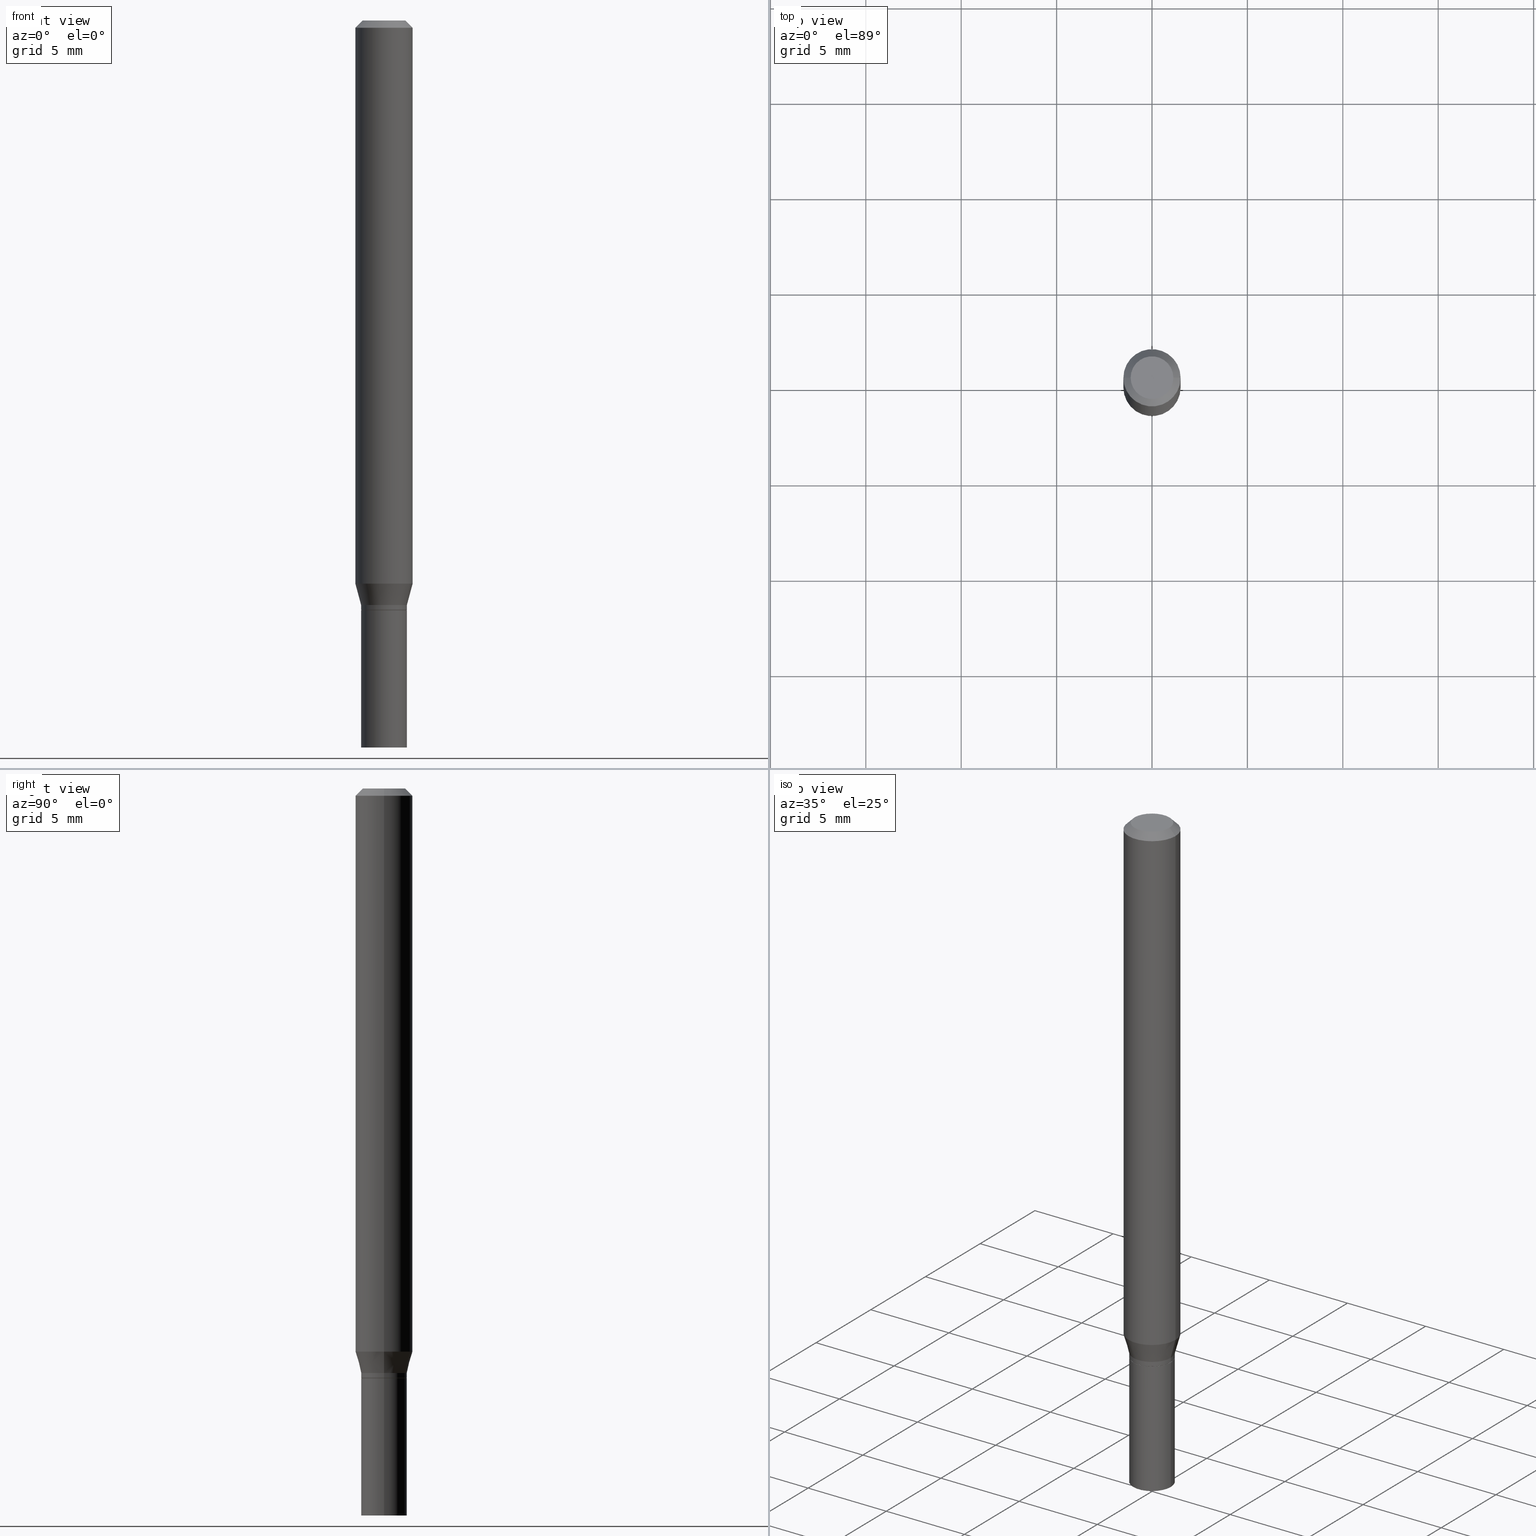
[diagram: canonical four-view strip — front | top / right | iso, engineering-drawing reading convention]
A machine part, canonical four-view strip (front | top / right | iso — engineering-drawing reading convention). The complete STEP part file that produces these views, byte-faithful:
ISO-10303-21;
HEADER;
FILE_DESCRIPTION (( 'STEP AP203' ),
    '1' );
FILE_NAME ('02885.STEP',
    '2024-03-18T21:58:49',
    ( '' ),
    ( '' ),
    'SwSTEP 2.0',
    'SolidWorks 2023',
    '' );
FILE_SCHEMA (( 'CONFIG_CONTROL_DESIGN' ));
ENDSEC;

DATA;
#1 = DIRECTION ( 'NONE',  ( -2.445468806185136597E-29, 3.491481338843145583E-15, 1.000000000000000000 ) ) ;
#2 = PERSON_AND_ORGANIZATION ( #64, #134 ) ;
#3 = PRODUCT_DEFINITION ( 'UNKNOWN', '', #232, #330 ) ;
#4 = ORIENTED_EDGE ( 'NONE', *, *, #308, .F. ) ;
#5 = AXIS2_PLACEMENT_3D ( 'NONE', #349, #131, #421 ) ;
#6 = VECTOR ( 'NONE', #400, 39.37007874015748854 ) ;
#7 = PERSON_AND_ORGANIZATION ( #64, #134 ) ;
#8 = CARTESIAN_POINT ( 'NONE',  ( 2.949235380259274955E-29, -4.210726494644834635E-15, -1.206000000000000183 ) ) ;
#9 = EDGE_LOOP ( 'NONE', ( #409, #422, #267, #25 ) ) ;
#10 = COORDINATED_UNIVERSAL_TIME_OFFSET ( 5, 0, .BEHIND. ) ;
#11 = LINE ( 'NONE', #83, #407 ) ;
#12 = DIRECTION ( 'NONE',  ( -2.445468806185136597E-29, 3.491481338843145583E-15, 1.000000000000000000 ) ) ;
#13 = PERSON_AND_ORGANIZATION ( #64, #134 ) ;
#14 = AXIS2_PLACEMENT_3D ( 'NONE', #208, #429, #100 ) ;
#15 = CARTESIAN_POINT ( 'NONE',  ( -0.04725000000000005584, -3.874995051998187196E-15, -1.206000000000000183 ) ) ;
#16 = APPLICATION_PROTOCOL_DEFINITION ( 'international standard', 'config_control_design', 1994, #209 ) ;
#17 = EDGE_CURVE ( 'NONE', #245, #123, #254, .T. ) ;
#18 = ORIENTED_EDGE ( 'NONE', *, *, #363, .T. ) ;
#19 = ORIENTED_EDGE ( 'NONE', *, *, #17, .T. ) ;
#20 = VECTOR ( 'NONE', #402, 39.37007874015748143 ) ;
#21 = VERTEX_POINT ( 'NONE', #283 ) ;
#22 = CC_DESIGN_PERSON_AND_ORGANIZATION_ASSIGNMENT ( #7, #184, ( #3 ) ) ;
#23 = ORIENTED_EDGE ( 'NONE', *, *, #17, .F. ) ;
#24 = DIRECTION ( 'NONE',  ( -2.445468806185136597E-29, 3.491481338843145583E-15, 1.000000000000000000 ) ) ;
#25 = ORIENTED_EDGE ( 'NONE', *, *, #77, .F. ) ;
#26 = CIRCLE ( 'NONE', #367, 0.04404999999999999888 ) ;
#27 = APPROVAL_PERSON_ORGANIZATION ( #43, #313, #69 ) ;
#28 = ADVANCED_FACE ( 'NONE', ( #249 ), #341, .F. ) ;
#29 = DIRECTION ( 'NONE',  ( 2.445468806185136597E-29, -3.491481338843145583E-15, -1.000000000000000000 ) ) ;
#30 = FACE_OUTER_BOUND ( 'NONE', #380, .T. ) ;
#31 = CC_DESIGN_DATE_AND_TIME_ASSIGNMENT ( #316, #389, ( #3 ) ) ;
#32 = ORIENTED_EDGE ( 'NONE', *, *, #401, .T. ) ;
#33 = CYLINDRICAL_SURFACE ( 'NONE', #34, 0.05904999999999999832 ) ;
#34 = AXIS2_PLACEMENT_3D ( 'NONE', #173, #314, #136 ) ;
#35 = ORIENTED_EDGE ( 'NONE', *, *, #114, .T. ) ;
#36 = ADVANCED_FACE ( 'NONE', ( #167 ), #247, .T. ) ;
#37 = CARTESIAN_POINT ( 'NONE',  ( 0.04724999999999999339, -3.299449865206760567E-16, 2.303993526563579480E-30 ) ) ;
#38 = PERSON_AND_ORGANIZATION_ROLE ( 'creator' ) ;
#39 = DATE_AND_TIME ( #105, #206 ) ;
#40 = CIRCLE ( 'NONE', #298, 0.04724999999999999339 ) ;
#41 = AXIS2_PLACEMENT_3D ( 'NONE', #8, #149, #332 ) ;
#42 = ORIENTED_EDGE ( 'NONE', *, *, #289, .T. ) ;
#43 = PERSON_AND_ORGANIZATION ( #64, #134 ) ;
#44 = PERSON_AND_ORGANIZATION_ROLE ( 'classification_officer' ) ;
#45 = FACE_OUTER_BOUND ( 'NONE', #227, .T. ) ;
#46 = AXIS2_PLACEMENT_3D ( 'NONE', #57, #384, #456 ) ;
#47 = AXIS2_PLACEMENT_3D ( 'NONE', #379, #347, #462 ) ;
#48 = CC_DESIGN_APPROVAL ( #140, ( #232 ) ) ;
#49 = CARTESIAN_POINT ( 'NONE',  ( 3.299449865207057376E-16, 0.04724999999999574679, -1.216500000000000359 ) ) ;
#50 = VERTEX_POINT ( 'NONE', #236 ) ;
#51 = PERSON_AND_ORGANIZATION_ROLE ( 'design_owner' ) ;
#52 = FACE_OUTER_BOUND ( 'NONE', #265, .T. ) ;
#53 = ORIENTED_EDGE ( 'NONE', *, *, #224, .T. ) ;
#54 =( NAMED_UNIT ( * ) SI_UNIT ( $, .STERADIAN. ) SOLID_ANGLE_UNIT ( ) );
#55 = DIRECTION ( 'NONE',  ( 1.000000000000000000, -6.982962677686266711E-15, 0.000000000000000000 ) ) ;
#56 = ORIENTED_EDGE ( 'NONE', *, *, #112, .F. ) ;
#57 = CARTESIAN_POINT ( 'NONE',  ( 2.974912802724219302E-29, -4.247387048702686999E-15, -1.216500000000000137 ) ) ;
#58 = EDGE_LOOP ( 'NONE', ( #231, #81 ) ) ;
#59 = DIRECTION ( 'NONE',  ( 1.000000000000000000, -6.982962677686266711E-15, 0.000000000000000000 ) ) ;
#60 = ORIENTED_EDGE ( 'NONE', *, *, #435, .F. ) ;
#61 = CIRCLE ( 'NONE', #153, 0.04674999999999999295 ) ;
#62 = CC_DESIGN_PERSON_AND_ORGANIZATION_ASSIGNMENT ( #253, #38, ( #232 ) ) ;
#63 = CARTESIAN_POINT ( 'NONE',  ( 0.05904999999999999832, -4.469311888909361635E-15, -1.161961800470687534 ) ) ;
#64 = PERSON ( 'UNSPECIFIED', 'UNSPECIFIED', 'UNSPECIFIED', ('UNSPECIFIED'), ('UNSPECIFIED'), ('UNSPECIFIED') ) ;
#65 = EDGE_CURVE ( 'NONE', #193, #200, #108, .T. ) ;
#66 = DIRECTION ( 'NONE',  ( -2.445468806185136877E-29, 3.491481338843145188E-15, 1.000000000000000000 ) ) ;
#67 = CARTESIAN_POINT ( 'NONE',  ( 0.000000000000000000, 0.000000000000000000, 0.000000000000000000 ) ) ;
#68 = APPROVAL_PERSON_ORGANIZATION ( #256, #140, #436 ) ;
#69 = APPROVAL_ROLE ( '' ) ;
#70 = COORDINATED_UNIVERSAL_TIME_OFFSET ( 5, 0, .BEHIND. ) ;
#71 = AXIS2_PLACEMENT_3D ( 'NONE', #67, #357, #194 ) ;
#72 = ADVANCED_FACE ( 'NONE', ( #381 ), #318, .T. ) ;
#73 = PERSON_AND_ORGANIZATION ( #64, #134 ) ;
#74 = DIRECTION ( 'NONE',  ( -2.445468806185136597E-29, 3.491481338843145583E-15, 1.000000000000000000 ) ) ;
#75 = EDGE_CURVE ( 'NONE', #50, #118, #61, .T. ) ;
#76 = LINE ( 'NONE', #449, #177 ) ;
#77 = EDGE_CURVE ( 'NONE', #418, #306, #90, .T. ) ;
#78 = DIRECTION ( 'NONE',  ( 1.000000000000000000, -6.982962677686266711E-15, 0.000000000000000000 ) ) ;
#79 = ORIENTED_EDGE ( 'NONE', *, *, #453, .F. ) ;
#80 = CIRCLE ( 'NONE', #119, 0.05904999999999999832 ) ;
#81 = ORIENTED_EDGE ( 'NONE', *, *, #65, .T. ) ;
#82 =( CONVERSION_BASED_UNIT ( 'INCH', #223 ) LENGTH_UNIT ( ) NAMED_UNIT ( #412 ) );
#83 = CARTESIAN_POINT ( 'NONE',  ( -0.05904999999999999832, 4.195754854663391478E-16, -2.904631170795521892E-30 ) ) ;
#84 = ORIENTED_EDGE ( 'NONE', *, *, #276, .T. ) ;
#85 = DIRECTION ( 'NONE',  ( 1.000000000000000000, -6.982962677686265922E-15, 4.876176775795935793E-29 ) ) ;
#86 = PRODUCT ( '02885', '02885', '', ( #410 ) ) ;
#87 = CARTESIAN_POINT ( 'NONE',  ( -0.04725000000000005584, -3.909909865386617268E-15, -1.216000000000000192 ) ) ;
#88 = ORIENTED_EDGE ( 'NONE', *, *, #411, .F. ) ;
#89 = AXIS2_PLACEMENT_3D ( 'NONE', #94, #378, #205 ) ;
#90 = CIRCLE ( 'NONE', #271, 0.04725000000000005584 ) ;
#91 = APPROVAL_PERSON_ORGANIZATION ( #13, #106, #324 ) ;
#92 = ORIENTED_EDGE ( 'NONE', *, *, #435, .T. ) ;
#93 = CARTESIAN_POINT ( 'NONE',  ( 2.974912802724219302E-29, -4.247387048702686999E-15, -1.216500000000000137 ) ) ;
#94 = CARTESIAN_POINT ( 'NONE',  ( 3.075995059520799729E-16, 0.04404999999999999888, -2.583469029759998662E-16 ) ) ;
#95 = ADVANCED_FACE ( 'NONE', ( #458 ), #339, .T. ) ;
#96 = CC_DESIGN_SECURITY_CLASSIFICATION ( #448, ( #232 ) ) ;
#97 = CARTESIAN_POINT ( 'NONE',  ( 3.668203209277705088E-31, -5.237222008264718399E-17, -0.01499999999999999944 ) ) ;
#98 = ADVANCED_BREP_SHAPE_REPRESENTATION ( '02885', ( #427, #432, #434 ), #179 ) ;
#99 = CARTESIAN_POINT ( 'NONE',  ( 0.04404999999999999888, -3.798447818264464023E-16, -2.090942999999162343E-16 ) ) ;
#100 = DIRECTION ( 'NONE',  ( 1.000000000000000000, -6.982962677686265922E-15, 4.876176775795935793E-29 ) ) ;
#101 = ADVANCED_FACE ( 'NONE', ( #275 ), #423, .F. ) ;
#102 = ORIENTED_EDGE ( 'NONE', *, *, #401, .F. ) ;
#103 = VECTOR ( 'NONE', #452, 39.37007874015748143 ) ;
#104 = APPROVAL_DATE_TIME ( #213, #313 ) ;
#105 = CALENDAR_DATE ( 2024, 18, 3 ) ;
#106 = APPROVAL ( #433, 'UNSPECIFIED' ) ;
#107 = APPROVAL_STATUS ( 'not_yet_approved' ) ;
#108 = CIRCLE ( 'NONE', #5, 0.04404999999999999888 ) ;
#109 = DATE_AND_TIME ( #285, #120 ) ;
#110 = VECTOR ( 'NONE', #66, 39.37007874015748143 ) ;
#111 = DIRECTION ( 'NONE',  ( -2.445468806185136877E-29, 3.491481338843145188E-15, 1.000000000000000000 ) ) ;
#112 = EDGE_CURVE ( 'NONE', #21, #165, #166, .T. ) ;
#113 = DIRECTION ( 'NONE',  ( -2.445468806185136597E-29, 3.491481338843145583E-15, 1.000000000000000000 ) ) ;
#114 = EDGE_CURVE ( 'NONE', #288, #338, #376, .T. ) ;
#115 = DIRECTION ( 'NONE',  ( -2.445468806185136597E-29, 3.491481338843145583E-15, 1.000000000000000000 ) ) ;
#116 = EDGE_LOOP ( 'NONE', ( #128, #190, #304, #414 ) ) ;
#117 = DIRECTION ( 'NONE',  ( 1.000000000000000000, -6.982962677686266711E-15, 0.000000000000000000 ) ) ;
#118 = VERTEX_POINT ( 'NONE', #428 ) ;
#119 = AXIS2_PLACEMENT_3D ( 'NONE', #225, #443, #55 ) ;
#120 = LOCAL_TIME ( 17, 58, 49.00000000000000000, #10 ) ;
#121 =( LENGTH_UNIT ( ) NAMED_UNIT ( * ) SI_UNIT ( $, .METRE. ) );
#122 = CYLINDRICAL_SURFACE ( 'NONE', #239, 0.04725000000000005584 ) ;
#123 = VERTEX_POINT ( 'NONE', #466 ) ;
#124 = CARTESIAN_POINT ( 'NONE',  ( 3.576687321579069994E-29, -5.368277968210015545E-15, -1.500000000000000222 ) ) ;
#125 = ADVANCED_FACE ( 'NONE', ( #352 ), #420, .T. ) ;
#126 = ORIENTED_EDGE ( 'NONE', *, *, #75, .F. ) ;
#127 = CARTESIAN_POINT ( 'NONE',  ( 0.000000000000000000, 0.000000000000000000, 0.000000000000000000 ) ) ;
#128 = ORIENTED_EDGE ( 'NONE', *, *, #65, .F. ) ;
#129 = CLOSED_SHELL ( 'NONE', ( #395, #36, #238, #446, #192, #465, #176, #374, #28, #135, #72, #95 ) ) ;
#130 = DIRECTION ( 'NONE',  ( 1.000000000000000000, -6.982962677686266711E-15, 0.000000000000000000 ) ) ;
#131 = DIRECTION ( 'NONE',  ( -2.445468806185136597E-29, 3.491481338843145583E-15, 1.000000000000000000 ) ) ;
#132 = ORIENTED_EDGE ( 'NONE', *, *, #75, .T. ) ;
#133 = CIRCLE ( 'NONE', #172, 0.04725000000000005584 ) ;
#134 = ORGANIZATION ( 'UNSPECIFIED', 'UNSPECIFIED', '' ) ;
#135 = ADVANCED_FACE ( 'NONE', ( #30 ), #164, .F. ) ;
#136 = DIRECTION ( 'NONE',  ( 1.000000000000000000, -6.982962677686266711E-15, 4.876176775795936353E-29 ) ) ;
#137 = DIRECTION ( 'NONE',  ( 1.000000000000000000, -6.982962677686273021E-15, 0.000000000000000000 ) ) ;
#138 = VERTEX_POINT ( 'NONE', #387 ) ;
#139 = VECTOR ( 'NONE', #152, 39.37007874015748143 ) ;
#140 = APPROVAL ( #287, 'UNSPECIFIED' ) ;
#141 = DIRECTION ( 'NONE',  ( 1.000000000000000000, -6.982962677686256455E-15, 0.000000000000000000 ) ) ;
#142 = CARTESIAN_POINT ( 'NONE',  ( 0.04724999999999999339, -4.577332035223362218E-15, -1.216500000000000137 ) ) ;
#143 = LINE ( 'NONE', #37, #312 ) ;
#144 = EDGE_CURVE ( 'NONE', #240, #338, #143, .T. ) ;
#145 = PERSON_AND_ORGANIZATION_ROLE ( 'design_supplier' ) ;
#146 = CIRCLE ( 'NONE', #186, 0.04674999999999999295 ) ;
#147 = CARTESIAN_POINT ( 'NONE',  ( -0.04724999999999999339, -4.406573085837055149E-15, -1.216500000000000137 ) ) ;
#148 = FACE_OUTER_BOUND ( 'NONE', #340, .T. ) ;
#149 = DIRECTION ( 'NONE',  ( -2.445468806185136597E-29, 3.491481338843145583E-15, 1.000000000000000000 ) ) ;
#150 = PLANE ( 'NONE',  #204 ) ;
#151 = EDGE_LOOP ( 'NONE', ( #19, #383, #337, #377 ) ) ;
#152 = DIRECTION ( 'NONE',  ( -2.445468806185136877E-29, 3.491481338843145188E-15, 1.000000000000000000 ) ) ;
#153 = AXIS2_PLACEMENT_3D ( 'NONE', #93, #309, #59 ) ;
#154 = ORIENTED_EDGE ( 'NONE', *, *, #210, .T. ) ;
#155 = CC_DESIGN_PERSON_AND_ORGANIZATION_ASSIGNMENT ( #2, #44, ( #448 ) ) ;
#156 = ORIENTED_EDGE ( 'NONE', *, *, #351, .F. ) ;
#157 = CARTESIAN_POINT ( 'NONE',  ( 0.000000000000000000, 0.000000000000000000, 0.000000000000000000 ) ) ;
#158 = FACE_OUTER_BOUND ( 'NONE', #260, .T. ) ;
#159 = FACE_OUTER_BOUND ( 'NONE', #251, .T. ) ;
#160 = ADVANCED_FACE ( 'NONE', ( #159 ), #364, .T. ) ;
#161 = ORIENTED_EDGE ( 'NONE', *, *, #114, .F. ) ;
#162 = PRODUCT_DEFINITION_SHAPE ( 'NONE', 'NONE',  #3 ) ;
#163 = CARTESIAN_POINT ( 'NONE',  ( -0.04404999999999999888, 3.337856159934030687E-16, -2.090942999999208688E-16 ) ) ;
#164 = PLANE ( 'NONE',  #14 ) ;
#165 = VERTEX_POINT ( 'NONE', #87 ) ;
#166 = CIRCLE ( 'NONE', #326, 0.04725000000000005584 ) ;
#167 = FACE_OUTER_BOUND ( 'NONE', #203, .T. ) ;
#168 = DIRECTION ( 'NONE',  ( -2.445468806185136597E-29, 3.491481338843145583E-15, 1.000000000000000000 ) ) ;
#169 = DIRECTION ( 'NONE',  ( -1.000000000000000000, 6.982962677686266711E-15, 0.000000000000000000 ) ) ;
#170 = CARTESIAN_POINT ( 'NONE',  ( 2.949235380259274955E-29, -4.210726494644834635E-15, -1.206000000000000183 ) ) ;
#171 = CARTESIAN_POINT ( 'NONE',  ( 2.974912802724219302E-29, -4.247387048702686999E-15, -1.216500000000000137 ) ) ;
#172 = AXIS2_PLACEMENT_3D ( 'NONE', #258, #12, #403 ) ;
#173 = CARTESIAN_POINT ( 'NONE',  ( 0.000000000000000000, 0.000000000000000000, 0.000000000000000000 ) ) ;
#174 = CARTESIAN_POINT ( 'NONE',  ( 2.841541337029784327E-29, -4.056967942791988293E-15, -1.161961800470687534 ) ) ;
#175 = ORIENTED_EDGE ( 'NONE', *, *, #317, .F. ) ;
#176 = ADVANCED_FACE ( 'NONE', ( #229 ), #459, .T. ) ;
#177 = VECTOR ( 'NONE', #290, 39.37007874015748143 ) ;
#178 = CONICAL_SURFACE ( 'NONE', #319, 0.05904999999999999832, 0.7853981633974553844 ) ;
#179 =( GEOMETRIC_REPRESENTATION_CONTEXT ( 3 ) GLOBAL_UNCERTAINTY_ASSIGNED_CONTEXT ( ( #217 ) ) GLOBAL_UNIT_ASSIGNED_CONTEXT ( ( #82, #406, #54 ) ) REPRESENTATION_CONTEXT ( 'NONE', 'WORKASPACE' ) );
#180 = DATE_AND_TIME ( #396, #241 ) ;
#181 = DIRECTION ( 'NONE',  ( -2.445468806185136597E-29, 3.491481338843145583E-15, 1.000000000000000000 ) ) ;
#182 = EDGE_LOOP ( 'NONE', ( #354, #226, #430, #175 ) ) ;
#183 = EDGE_CURVE ( 'NONE', #200, #193, #26, .T. ) ;
#184 = PERSON_AND_ORGANIZATION_ROLE ( 'creator' ) ;
#185 = CARTESIAN_POINT ( 'NONE',  ( 0.000000000000000000, 0.000000000000000000, 0.000000000000000000 ) ) ;
#186 = AXIS2_PLACEMENT_3D ( 'NONE', #244, #303, #130 ) ;
#187 = CARTESIAN_POINT ( 'NONE',  ( 0.05904999999999999832, -4.123439461173740327E-16, 2.879382386107500220E-30 ) ) ;
#188 = DIRECTION ( 'NONE',  ( 0.000000000000000000, 0.000000000000000000, 1.000000000000000000 ) ) ;
#189 = DIRECTION ( 'NONE',  ( 1.000000000000000000, -6.982962677686273021E-15, 0.000000000000000000 ) ) ;
#190 = ORIENTED_EDGE ( 'NONE', *, *, #243, .T. ) ;
#191 = DIRECTION ( 'NONE',  ( -2.445468806185136597E-29, 3.491481338843145583E-15, 1.000000000000000000 ) ) ;
#192 = ADVANCED_FACE ( 'NONE', ( #158 ), #390, .T. ) ;
#193 = VERTEX_POINT ( 'NONE', #99 ) ;
#194 = DIRECTION ( 'NONE',  ( 1.000000000000000000, -6.982962677686266711E-15, 4.876176775795936353E-29 ) ) ;
#195 = CARTESIAN_POINT ( 'NONE',  ( 3.668203209277704895E-29, -5.237222008264718177E-15, -1.500000000000000222 ) ) ;
#196 = AXIS2_PLACEMENT_3D ( 'NONE', #124, #268, #85 ) ;
#197 = ORIENTED_EDGE ( 'NONE', *, *, #308, .T. ) ;
#198 = DIRECTION ( 'NONE',  ( 1.000000000000000000, -6.982962677686266711E-15, 0.000000000000000000 ) ) ;
#199 = DIRECTION ( 'NONE',  ( 1.000000000000000000, -6.982962677686265922E-15, 4.888540261209747396E-29 ) ) ;
#200 = VERTEX_POINT ( 'NONE', #163 ) ;
#201 = DIRECTION ( 'NONE',  ( 1.000000000000000000, -6.982962677686257244E-15, 0.000000000000000000 ) ) ;
#202 = EDGE_CURVE ( 'NONE', #118, #50, #146, .T. ) ;
#203 = EDGE_LOOP ( 'NONE', ( #132, #53, #56, #156 ) ) ;
#204 = AXIS2_PLACEMENT_3D ( 'NONE', #49, #333, #300 ) ;
#205 = DIRECTION ( 'NONE',  ( -1.000000000000000000, 6.982962677686265922E-15, -4.876176775795935793E-29 ) ) ;
#206 = LOCAL_TIME ( 17, 58, 49.00000000000000000, #399 ) ;
#207 = CARTESIAN_POINT ( 'NONE',  ( -0.04725000000000005584, -3.756193754661917998E-15, -1.206000000000000183 ) ) ;
#208 = CARTESIAN_POINT ( 'NONE',  ( 2.974912802724219302E-29, -4.247387048702686999E-15, -1.216500000000000137 ) ) ;
#209 = APPLICATION_CONTEXT ( 'configuration controlled 3d designs of mechanical parts and assemblies' ) ;
#210 = EDGE_CURVE ( 'NONE', #138, #288, #273, .T. ) ;
#211 = DIRECTION ( 'NONE',  ( -2.445468806185136597E-29, 3.491481338843145583E-15, 1.000000000000000000 ) ) ;
#212 = AXIS2_PLACEMENT_3D ( 'NONE', #171, #181, #460 ) ;
#213 = DATE_AND_TIME ( #214, #391 ) ;
#214 = CALENDAR_DATE ( 2024, 18, 3 ) ;
#215 = CARTESIAN_POINT ( 'NONE',  ( 3.668203209277705088E-31, -5.237222008264718399E-17, -0.01499999999999999944 ) ) ;
#216 = LINE ( 'NONE', #328, #6 ) ;
#217 = UNCERTAINTY_MEASURE_WITH_UNIT (LENGTH_MEASURE( 1.000000000000000082E-05 ), #82, 'distance_accuracy_value', 'NONE');
#218 = CLOSED_SHELL ( 'NONE', ( #125, #101, #160, #344 ) ) ;
#219 = AXIS2_PLACEMENT_3D ( 'NONE', #350, #191, #189 ) ;
#220 = CARTESIAN_POINT ( 'NONE',  ( 0.04725000000000005584, -4.540671481165510643E-15, -1.206000000000000183 ) ) ;
#221 = CONICAL_SURFACE ( 'NONE', #41, 0.04725000000000005584, 0.2617993877991489637 ) ;
#222 = ORIENTED_EDGE ( 'NONE', *, *, #202, .F. ) ;
#223 = LENGTH_MEASURE_WITH_UNIT ( LENGTH_MEASURE( 0.02539999999999999897 ), #121 );
#224 = EDGE_CURVE ( 'NONE', #118, #165, #279, .T. ) ;
#225 = CARTESIAN_POINT ( 'NONE',  ( 3.668203209277705088E-31, -5.237222008264718399E-17, -0.01499999999999999944 ) ) ;
#226 = ORIENTED_EDGE ( 'NONE', *, *, #202, .T. ) ;
#227 = EDGE_LOOP ( 'NONE', ( #302, #42, #88, #79 ) ) ;
#228 = DIRECTION ( 'NONE',  ( -2.445468806185136597E-29, 3.491481338843145583E-15, 1.000000000000000000 ) ) ;
#229 = FACE_OUTER_BOUND ( 'NONE', #444, .T. ) ;
#230 = AXIS2_PLACEMENT_3D ( 'NONE', #195, #325, #117 ) ;
#231 = ORIENTED_EDGE ( 'NONE', *, *, #183, .T. ) ;
#232 = PRODUCT_DEFINITION_FORMATION_WITH_SPECIFIED_SOURCE ( 'ANY', '', #86, .NOT_KNOWN. ) ;
#233 = EDGE_LOOP ( 'NONE', ( #102, #375, #416, #397 ) ) ;
#234 = DIRECTION ( 'NONE',  ( 1.000000000000000000, -6.982962677686266711E-15, 4.876176775795936353E-29 ) ) ;
#235 = CARTESIAN_POINT ( 'NONE',  ( -0.04724999999999999339, 3.357314426466472909E-16, -2.324196830145442815E-30 ) ) ;
#236 = CARTESIAN_POINT ( 'NONE',  ( 0.04674999999999999295, -4.573840553884519999E-15, -1.216500000000000137 ) ) ;
#237 = FACE_OUTER_BOUND ( 'NONE', #116, .T. ) ;
#238 = ADVANCED_FACE ( 'NONE', ( #237 ), #360, .T. ) ;
#239 = AXIS2_PLACEMENT_3D ( 'NONE', #185, #115, #259 ) ;
#240 = VERTEX_POINT ( 'NONE', #277 ) ;
#241 = LOCAL_TIME ( 17, 58, 49.00000000000000000, #320 ) ;
#242 = DIRECTION ( 'NONE',  ( -0.7071067811865656694, 7.493145998870420424E-15, 0.7071067811865294761 ) ) ;
#243 = EDGE_CURVE ( 'NONE', #193, #272, #310, .T. ) ;
#244 = CARTESIAN_POINT ( 'NONE',  ( 2.974912802724219302E-29, -4.247387048702686999E-15, -1.216500000000000137 ) ) ;
#245 = VERTEX_POINT ( 'NONE', #63 ) ;
#246 = FACE_OUTER_BOUND ( 'NONE', #151, .T. ) ;
#247 = CONICAL_SURFACE ( 'NONE', #46, 0.04674999999999999295, 0.7853981633974739252 ) ;
#248 = VECTOR ( 'NONE', #385, 39.37007874015748854 ) ;
#249 = FACE_OUTER_BOUND ( 'NONE', #58, .T. ) ;
#250 = SHAPE_DEFINITION_REPRESENTATION ( #162, #98 ) ;
#251 = EDGE_LOOP ( 'NONE', ( #356, #197, #405, #161 ) ) ;
#252 = APPROVAL_DATE_TIME ( #109, #106 ) ;
#253 = PERSON_AND_ORGANIZATION ( #64, #134 ) ;
#254 = CIRCLE ( 'NONE', #343, 0.05904999999999999832 ) ;
#255 = CIRCLE ( 'NONE', #284, 0.05904999999999999832 ) ;
#256 = PERSON_AND_ORGANIZATION ( #64, #134 ) ;
#257 = DIRECTION ( 'NONE',  ( 0.2588190451025202954, 1.565188264969630251E-15, 0.9659258262890684232 ) ) ;
#258 = CARTESIAN_POINT ( 'NONE',  ( 2.949235380259274955E-29, -4.210726494644834635E-15, -1.206000000000000183 ) ) ;
#259 = DIRECTION ( 'NONE',  ( 1.000000000000000000, -6.982962677686266711E-15, 4.876176775795936353E-29 ) ) ;
#260 = EDGE_LOOP ( 'NONE', ( #297, #32, #23, #301 ) ) ;
#261 = DIRECTION ( 'NONE',  ( 1.000000000000000000, 0.000000000000000000, 0.000000000000000000 ) ) ;
#262 = EDGE_CURVE ( 'NONE', #123, #245, #291, .T. ) ;
#263 = VECTOR ( 'NONE', #257, 39.37007874015748143 ) ;
#264 = CARTESIAN_POINT ( 'NONE',  ( 2.973690068321126501E-29, -4.245641308033265495E-15, -1.216000000000000192 ) ) ;
#265 = EDGE_LOOP ( 'NONE', ( #92, #35 ) ) ;
#266 = CARTESIAN_POINT ( 'NONE',  ( 0.05904999999999999832, -4.647161662000212105E-16, -0.01499999999999999944 ) ) ;
#267 = ORIENTED_EDGE ( 'NONE', *, *, #453, .T. ) ;
#268 = DIRECTION ( 'NONE',  ( -2.438088387897960049E-29, 3.491481338843145188E-15, 1.000000000000000000 ) ) ;
#269 = EDGE_CURVE ( 'NONE', #245, #272, #362, .T. ) ;
#270 = ORIENTED_EDGE ( 'NONE', *, *, #243, .F. ) ;
#271 = AXIS2_PLACEMENT_3D ( 'NONE', #170, #311, #201 ) ;
#272 = VERTEX_POINT ( 'NONE', #266 ) ;
#273 = LINE ( 'NONE', #235, #103 ) ;
#274 = DIRECTION ( 'NONE',  ( -2.445468806185136597E-29, 3.491481338843145583E-15, 1.000000000000000000 ) ) ;
#275 = FACE_OUTER_BOUND ( 'NONE', #334, .T. ) ;
#276 = EDGE_CURVE ( 'NONE', #450, #272, #255, .T. ) ;
#277 = CARTESIAN_POINT ( 'NONE',  ( 0.04724999999999999339, -5.567166994785394973E-15, -1.500000000000000222 ) ) ;
#278 = AXIS2_PLACEMENT_3D ( 'NONE', #315, #426, #348 ) ;
#279 = LINE ( 'NONE', #457, #455 ) ;
#280 = ORIENTED_EDGE ( 'NONE', *, *, #327, .F. ) ;
#281 = CARTESIAN_POINT ( 'NONE',  ( -0.05904999999999999832, -1.635094595970978587E-15, -0.01499999999999999944 ) ) ;
#282 = EDGE_CURVE ( 'NONE', #240, #138, #336, .T. ) ;
#283 = CARTESIAN_POINT ( 'NONE',  ( 0.04725000000000005584, -4.575586294553942292E-15, -1.216000000000000192 ) ) ;
#284 = AXIS2_PLACEMENT_3D ( 'NONE', #371, #413, #373 ) ;
#285 = CALENDAR_DATE ( 2024, 18, 3 ) ;
#286 = EDGE_CURVE ( 'NONE', #272, #450, #80, .T. ) ;
#287 = APPROVAL_STATUS ( 'not_yet_approved' ) ;
#288 = VERTEX_POINT ( 'NONE', #147 ) ;
#289 = EDGE_CURVE ( 'NONE', #165, #418, #293, .T. ) ;
#290 = DIRECTION ( 'NONE',  ( 0.7071067811865656694, -2.468850131082446387E-15, 0.7071067811865294761 ) ) ;
#291 = CIRCLE ( 'NONE', #219, 0.05904999999999999832 ) ;
#292 = SECURITY_CLASSIFICATION_LEVEL ( 'unclassified' ) ;
#293 = LINE ( 'NONE', #365, #20 ) ;
#294 = DIRECTION ( 'NONE',  ( 2.445468806185136597E-29, -3.491481338843145583E-15, -1.000000000000000000 ) ) ;
#295 = CC_DESIGN_PERSON_AND_ORGANIZATION_ASSIGNMENT ( #329, #51, ( #86 ) ) ;
#296 = LINE ( 'NONE', #438, #263 ) ;
#297 = ORIENTED_EDGE ( 'NONE', *, *, #411, .T. ) ;
#298 = AXIS2_PLACEMENT_3D ( 'NONE', #386, #211, #141 ) ;
#299 = DIRECTION ( 'NONE',  ( -2.445468806185136877E-29, 3.491481338843145188E-15, 1.000000000000000000 ) ) ;
#300 = DIRECTION ( 'NONE',  ( -1.000000000000000000, 6.982962677686265922E-15, -4.876176775795935793E-29 ) ) ;
#301 = ORIENTED_EDGE ( 'NONE', *, *, #359, .F. ) ;
#302 = ORIENTED_EDGE ( 'NONE', *, *, #112, .T. ) ;
#303 = DIRECTION ( 'NONE',  ( -2.445468806185136597E-29, 3.491481338843145583E-15, 1.000000000000000000 ) ) ;
#304 = ORIENTED_EDGE ( 'NONE', *, *, #286, .T. ) ;
#305 = AXIS2_PLACEMENT_3D ( 'NONE', #127, #274, #417 ) ;
#306 = VERTEX_POINT ( 'NONE', #220 ) ;
#307 = CARTESIAN_POINT ( 'NONE',  ( 5.113335882009178277E-45, -7.300488465081862281E-31, -2.090942999999186255E-16 ) ) ;
#308 = EDGE_CURVE ( 'NONE', #138, #240, #345, .T. ) ;
#309 = DIRECTION ( 'NONE',  ( -2.445468806185136597E-29, 3.491481338843145583E-15, 1.000000000000000000 ) ) ;
#310 = LINE ( 'NONE', #424, #248 ) ;
#311 = DIRECTION ( 'NONE',  ( -2.445468806185136597E-29, 3.491481338843145583E-15, 1.000000000000000000 ) ) ;
#312 = VECTOR ( 'NONE', #299, 39.37007874015748143 ) ;
#313 = APPROVAL ( #107, 'UNSPECIFIED' ) ;
#314 = DIRECTION ( 'NONE',  ( -2.445468806185136597E-29, 3.491481338843145583E-15, 1.000000000000000000 ) ) ;
#315 = CARTESIAN_POINT ( 'NONE',  ( 0.000000000000000000, 0.000000000000000000, 0.000000000000000000 ) ) ;
#316 = DATE_AND_TIME ( #355, #440 ) ;
#317 = EDGE_CURVE ( 'NONE', #165, #21, #439, .T. ) ;
#318 = CONICAL_SURFACE ( 'NONE', #463, 0.04674999999999999295, 0.7853981633974739252 ) ;
#319 = AXIS2_PLACEMENT_3D ( 'NONE', #215, #294, #442 ) ;
#320 = COORDINATED_UNIVERSAL_TIME_OFFSET ( 5, 0, .BEHIND. ) ;
#321 = CC_DESIGN_PERSON_AND_ORGANIZATION_ASSIGNMENT ( #73, #145, ( #232 ) ) ;
#322 = FACE_OUTER_BOUND ( 'NONE', #233, .T. ) ;
#323 = ORIENTED_EDGE ( 'NONE', *, *, #269, .T. ) ;
#324 = APPROVAL_ROLE ( '' ) ;
#325 = DIRECTION ( 'NONE',  ( -2.445468806185136597E-29, 3.491481338843145583E-15, 1.000000000000000000 ) ) ;
#326 = AXIS2_PLACEMENT_3D ( 'NONE', #415, #228, #394 ) ;
#327 = EDGE_CURVE ( 'NONE', #123, #450, #11, .T. ) ;
#328 = CARTESIAN_POINT ( 'NONE',  ( -0.05904999999999999832, 3.599717260347268549E-16, -0.01499999999999999944 ) ) ;
#329 = PERSON_AND_ORGANIZATION ( #64, #134 ) ;
#330 = DESIGN_CONTEXT ( 'detailed design', #209, 'design' ) ;
#331 = ORIENTED_EDGE ( 'NONE', *, *, #262, .T. ) ;
#332 = DIRECTION ( 'NONE',  ( 1.000000000000000000, -6.982962677686257244E-15, 0.000000000000000000 ) ) ;
#333 = DIRECTION ( 'NONE',  ( 2.438088387897960049E-29, -3.491481338843145188E-15, -1.000000000000000000 ) ) ;
#334 = EDGE_LOOP ( 'NONE', ( #464, #4 ) ) ;
#335 = CARTESIAN_POINT ( 'NONE',  ( 0.000000000000000000, 0.000000000000000000, 0.000000000000000000 ) ) ;
#336 = CIRCLE ( 'NONE', #425, 0.04724999999999999339 ) ;
#337 = ORIENTED_EDGE ( 'NONE', *, *, #286, .F. ) ;
#338 = VERTEX_POINT ( 'NONE', #142 ) ;
#339 = CYLINDRICAL_SURFACE ( 'NONE', #353, 0.04725000000000005584 ) ;
#340 = EDGE_LOOP ( 'NONE', ( #270, #372, #18, #84 ) ) ;
#341 = PLANE ( 'NONE',  #89 ) ;
#342 = DIRECTION ( 'NONE',  ( -2.445468806185136597E-29, 3.491481338843145583E-15, 1.000000000000000000 ) ) ;
#343 = AXIS2_PLACEMENT_3D ( 'NONE', #174, #1, #137 ) ;
#344 = ADVANCED_FACE ( 'NONE', ( #52 ), #150, .F. ) ;
#345 = CIRCLE ( 'NONE', #230, 0.04724999999999999339 ) ;
#346 = CARTESIAN_POINT ( 'NONE',  ( 2.974912802724219302E-29, -4.247387048702686999E-15, -1.216500000000000137 ) ) ;
#347 = DIRECTION ( 'NONE',  ( -2.445468806185136597E-29, 3.491481338843145583E-15, 1.000000000000000000 ) ) ;
#348 = DIRECTION ( 'NONE',  ( 1.000000000000000000, -6.982962677686266711E-15, 4.876176775795936353E-29 ) ) ;
#349 = CARTESIAN_POINT ( 'NONE',  ( 5.113335882009178277E-45, -7.300488465081862281E-31, -2.090942999999186255E-16 ) ) ;
#350 = CARTESIAN_POINT ( 'NONE',  ( 2.841541337029784327E-29, -4.056967942791988293E-15, -1.161961800470687534 ) ) ;
#351 = EDGE_CURVE ( 'NONE', #50, #21, #76, .T. ) ;
#352 = FACE_OUTER_BOUND ( 'NONE', #451, .T. ) ;
#353 = AXIS2_PLACEMENT_3D ( 'NONE', #157, #24, #234 ) ;
#354 = ORIENTED_EDGE ( 'NONE', *, *, #224, .F. ) ;
#355 = CALENDAR_DATE ( 2024, 18, 3 ) ;
#356 = ORIENTED_EDGE ( 'NONE', *, *, #210, .F. ) ;
#357 = DIRECTION ( 'NONE',  ( -2.445468806185136597E-29, 3.491481338843145583E-15, 1.000000000000000000 ) ) ;
#358 = COORDINATED_UNIVERSAL_TIME_OFFSET ( 5, 0, .BEHIND. ) ;
#359 = EDGE_CURVE ( 'NONE', #306, #245, #296, .T. ) ;
#360 = CONICAL_SURFACE ( 'NONE', #398, 0.05904999999999999832, 0.7853981633974553844 ) ;
#361 = APPROVAL_DATE_TIME ( #39, #140 ) ;
#362 = LINE ( 'NONE', #187, #139 ) ;
#363 = EDGE_CURVE ( 'NONE', #200, #450, #216, .T. ) ;
#364 = CYLINDRICAL_SURFACE ( 'NONE', #71, 0.04724999999999999339 ) ;
#365 = CARTESIAN_POINT ( 'NONE',  ( -0.04725000000000005584, 3.357314426466477346E-16, -2.324196830145445968E-30 ) ) ;
#366 = APPLICATION_PROTOCOL_DEFINITION ( 'international standard', 'config_control_design', 1994, #393 ) ;
#367 = AXIS2_PLACEMENT_3D ( 'NONE', #307, #342, #199 ) ;
#368 = CC_DESIGN_APPROVAL ( #106, ( #3 ) ) ;
#369 = DIRECTION ( 'NONE',  ( 1.000000000000000000, -6.982962677686257244E-15, 0.000000000000000000 ) ) ;
#370 = ORIENTED_EDGE ( 'NONE', *, *, #276, .F. ) ;
#371 = CARTESIAN_POINT ( 'NONE',  ( 3.668203209277705088E-31, -5.237222008264718399E-17, -0.01499999999999999944 ) ) ;
#372 = ORIENTED_EDGE ( 'NONE', *, *, #183, .F. ) ;
#373 = DIRECTION ( 'NONE',  ( 1.000000000000000000, -6.982962677686266711E-15, 0.000000000000000000 ) ) ;
#374 = ADVANCED_FACE ( 'NONE', ( #148 ), #178, .T. ) ;
#375 = ORIENTED_EDGE ( 'NONE', *, *, #77, .T. ) ;
#376 = CIRCLE ( 'NONE', #212, 0.04724999999999999339 ) ;
#377 = ORIENTED_EDGE ( 'NONE', *, *, #269, .F. ) ;
#378 = DIRECTION ( 'NONE',  ( 2.438088387897960049E-29, -3.491481338843145188E-15, -1.000000000000000000 ) ) ;
#379 = CARTESIAN_POINT ( 'NONE',  ( 2.949235380259274955E-29, -4.210726494644834635E-15, -1.206000000000000183 ) ) ;
#380 = EDGE_LOOP ( 'NONE', ( #126, #222 ) ) ;
#381 = FACE_OUTER_BOUND ( 'NONE', #182, .T. ) ;
#382 = CC_DESIGN_APPROVAL ( #313, ( #448 ) ) ;
#383 = ORIENTED_EDGE ( 'NONE', *, *, #327, .T. ) ;
#384 = DIRECTION ( 'NONE',  ( -2.445468806185136597E-29, 3.491481338843145583E-15, 1.000000000000000000 ) ) ;
#385 = DIRECTION ( 'NONE',  ( 0.7071067811865524577, -7.319954787623271823E-15, -0.7071067811865424657 ) ) ;
#386 = CARTESIAN_POINT ( 'NONE',  ( 2.974912802724219302E-29, -4.247387048702686999E-15, -1.216500000000000137 ) ) ;
#387 = CARTESIAN_POINT ( 'NONE',  ( -0.04724999999999999339, -4.406573085837055149E-15, -1.500000000000000222 ) ) ;
#388 = CARTESIAN_POINT ( 'NONE',  ( 0.04725000000000005584, -3.299449865206765004E-16, 2.303993526563582633E-30 ) ) ;
#389 = DATE_TIME_ROLE ( 'creation_date' ) ;
#390 = CONICAL_SURFACE ( 'NONE', #47, 0.04725000000000005584, 0.2617993877991489637 ) ;
#391 = LOCAL_TIME ( 17, 58, 49.00000000000000000, #70 ) ;
#392 = ORIENTED_EDGE ( 'NONE', *, *, #282, .T. ) ;
#393 = APPLICATION_CONTEXT ( 'configuration controlled 3d designs of mechanical parts and assemblies' ) ;
#394 = DIRECTION ( 'NONE',  ( 1.000000000000000000, -6.982962677686257244E-15, 0.000000000000000000 ) ) ;
#395 = ADVANCED_FACE ( 'NONE', ( #45 ), #122, .T. ) ;
#396 = CALENDAR_DATE ( 2024, 18, 3 ) ;
#397 = ORIENTED_EDGE ( 'NONE', *, *, #262, .F. ) ;
#398 = AXIS2_PLACEMENT_3D ( 'NONE', #97, #29, #169 ) ;
#399 = COORDINATED_UNIVERSAL_TIME_OFFSET ( 5, 0, .BEHIND. ) ;
#400 = DIRECTION ( 'NONE',  ( -0.7071067811865524577, 2.468850131082309125E-15, -0.7071067811865424657 ) ) ;
#401 = EDGE_CURVE ( 'NONE', #418, #123, #404, .T. ) ;
#402 = DIRECTION ( 'NONE',  ( -2.445468806185136877E-29, 3.491481338843145188E-15, 1.000000000000000000 ) ) ;
#403 = DIRECTION ( 'NONE',  ( 1.000000000000000000, -6.982962677686257244E-15, 0.000000000000000000 ) ) ;
#404 = LINE ( 'NONE', #15, #445 ) ;
#405 = ORIENTED_EDGE ( 'NONE', *, *, #144, .T. ) ;
#406 =( NAMED_UNIT ( * ) PLANE_ANGLE_UNIT ( ) SI_UNIT ( $, .RADIAN. ) );
#407 = VECTOR ( 'NONE', #111, 39.37007874015748143 ) ;
#408 = CARTESIAN_POINT ( 'NONE',  ( 3.668203209277704895E-29, -5.237222008264718177E-15, -1.500000000000000222 ) ) ;
#409 = ORIENTED_EDGE ( 'NONE', *, *, #289, .F. ) ;
#410 = MECHANICAL_CONTEXT ( 'NONE', #393, 'mechanical' ) ;
#411 = EDGE_CURVE ( 'NONE', #306, #418, #133, .T. ) ;
#412 = DIMENSIONAL_EXPONENTS ( 1.000000000000000000, 0.000000000000000000, 0.000000000000000000, 0.000000000000000000, 0.000000000000000000, 0.000000000000000000, 0.000000000000000000 ) ;
#413 = DIRECTION ( 'NONE',  ( -2.445468806185136597E-29, 3.491481338843145583E-15, 1.000000000000000000 ) ) ;
#414 = ORIENTED_EDGE ( 'NONE', *, *, #363, .F. ) ;
#415 = CARTESIAN_POINT ( 'NONE',  ( 2.973690068321126501E-29, -4.245641308033265495E-15, -1.216000000000000192 ) ) ;
#416 = ORIENTED_EDGE ( 'NONE', *, *, #359, .T. ) ;
#417 = DIRECTION ( 'NONE',  ( 1.000000000000000000, -6.982962677686266711E-15, 4.876176775795936353E-29 ) ) ;
#418 = VERTEX_POINT ( 'NONE', #207 ) ;
#419 = PRODUCT_RELATED_PRODUCT_CATEGORY ( 'detail', '', ( #86 ) ) ;
#420 = CYLINDRICAL_SURFACE ( 'NONE', #278, 0.04724999999999999339 ) ;
#421 = DIRECTION ( 'NONE',  ( 1.000000000000000000, -6.982962677686265922E-15, 4.888540261209747396E-29 ) ) ;
#422 = ORIENTED_EDGE ( 'NONE', *, *, #317, .T. ) ;
#423 = PLANE ( 'NONE',  #196 ) ;
#424 = CARTESIAN_POINT ( 'NONE',  ( 0.05904999999999999832, -4.574846268510561447E-16, -0.01499999999999999944 ) ) ;
#425 = AXIS2_PLACEMENT_3D ( 'NONE', #408, #74, #78 ) ;
#426 = DIRECTION ( 'NONE',  ( -2.445468806185136597E-29, 3.491481338843145583E-15, 1.000000000000000000 ) ) ;
#427 = MANIFOLD_SOLID_BREP ( 'Body-Move/Copy2[1]', #218 ) ;
#428 = CARTESIAN_POINT ( 'NONE',  ( -0.04674999999999999295, -3.912559092560728469E-15, -1.216500000000000137 ) ) ;
#429 = DIRECTION ( 'NONE',  ( -2.438088387897960049E-29, 3.491481338843145188E-15, 1.000000000000000000 ) ) ;
#430 = ORIENTED_EDGE ( 'NONE', *, *, #351, .T. ) ;
#431 = LINE ( 'NONE', #388, #110 ) ;
#432 = MANIFOLD_SOLID_BREP ( 'Body-Move/Copy2[2]', #129 ) ;
#433 = APPROVAL_STATUS ( 'not_yet_approved' ) ;
#434 = AXIS2_PLACEMENT_3D ( 'NONE', #335, #188, #261 ) ;
#435 = EDGE_CURVE ( 'NONE', #338, #288, #40, .T. ) ;
#436 = APPROVAL_ROLE ( '' ) ;
#437 = DATE_TIME_ROLE ( 'classification_date' ) ;
#438 = CARTESIAN_POINT ( 'NONE',  ( 0.04725000000000005584, -4.540671481165510643E-15, -1.206000000000000183 ) ) ;
#439 = CIRCLE ( 'NONE', #447, 0.04725000000000005584 ) ;
#440 = LOCAL_TIME ( 17, 58, 49.00000000000000000, #358 ) ;
#441 = DIRECTION ( 'NONE',  ( -0.2588190451025202954, 5.211531920934543942E-15, 0.9659258262890684232 ) ) ;
#442 = DIRECTION ( 'NONE',  ( -1.000000000000000000, 6.982962677686266711E-15, 0.000000000000000000 ) ) ;
#443 = DIRECTION ( 'NONE',  ( -2.445468806185136597E-29, 3.491481338843145583E-15, 1.000000000000000000 ) ) ;
#444 = EDGE_LOOP ( 'NONE', ( #280, #331, #323, #370 ) ) ;
#445 = VECTOR ( 'NONE', #441, 39.37007874015748143 ) ;
#446 = ADVANCED_FACE ( 'NONE', ( #246 ), #33, .T. ) ;
#447 = AXIS2_PLACEMENT_3D ( 'NONE', #264, #113, #369 ) ;
#448 = SECURITY_CLASSIFICATION ( '', '', #292 ) ;
#449 = CARTESIAN_POINT ( 'NONE',  ( 0.04674999999999999295, -4.573840553884519999E-15, -1.216500000000000137 ) ) ;
#450 = VERTEX_POINT ( 'NONE', #281 ) ;
#451 = EDGE_LOOP ( 'NONE', ( #392, #154, #60, #454 ) ) ;
#452 = DIRECTION ( 'NONE',  ( -2.445468806185136877E-29, 3.491481338843145188E-15, 1.000000000000000000 ) ) ;
#453 = EDGE_CURVE ( 'NONE', #21, #306, #431, .T. ) ;
#454 = ORIENTED_EDGE ( 'NONE', *, *, #144, .F. ) ;
#455 = VECTOR ( 'NONE', #242, 39.37007874015748143 ) ;
#456 = DIRECTION ( 'NONE',  ( 1.000000000000000000, -6.982962677686266711E-15, 0.000000000000000000 ) ) ;
#457 = CARTESIAN_POINT ( 'NONE',  ( -0.04674999999999999295, -3.915208319734840459E-15, -1.216500000000000137 ) ) ;
#458 = FACE_OUTER_BOUND ( 'NONE', #9, .T. ) ;
#459 = CYLINDRICAL_SURFACE ( 'NONE', #305, 0.05904999999999999832 ) ;
#460 = DIRECTION ( 'NONE',  ( 1.000000000000000000, -6.982962677686256455E-15, 0.000000000000000000 ) ) ;
#461 = CC_DESIGN_DATE_AND_TIME_ASSIGNMENT ( #180, #437, ( #448 ) ) ;
#462 = DIRECTION ( 'NONE',  ( 1.000000000000000000, -6.982962677686257244E-15, 0.000000000000000000 ) ) ;
#463 = AXIS2_PLACEMENT_3D ( 'NONE', #346, #168, #198 ) ;
#464 = ORIENTED_EDGE ( 'NONE', *, *, #282, .F. ) ;
#465 = ADVANCED_FACE ( 'NONE', ( #322 ), #221, .T. ) ;
#466 = CARTESIAN_POINT ( 'NONE',  ( -0.05904999999999999832, -3.637392457325649589E-15, -1.161961800470687534 ) ) ;
ENDSEC;
END-ISO-10303-21;
